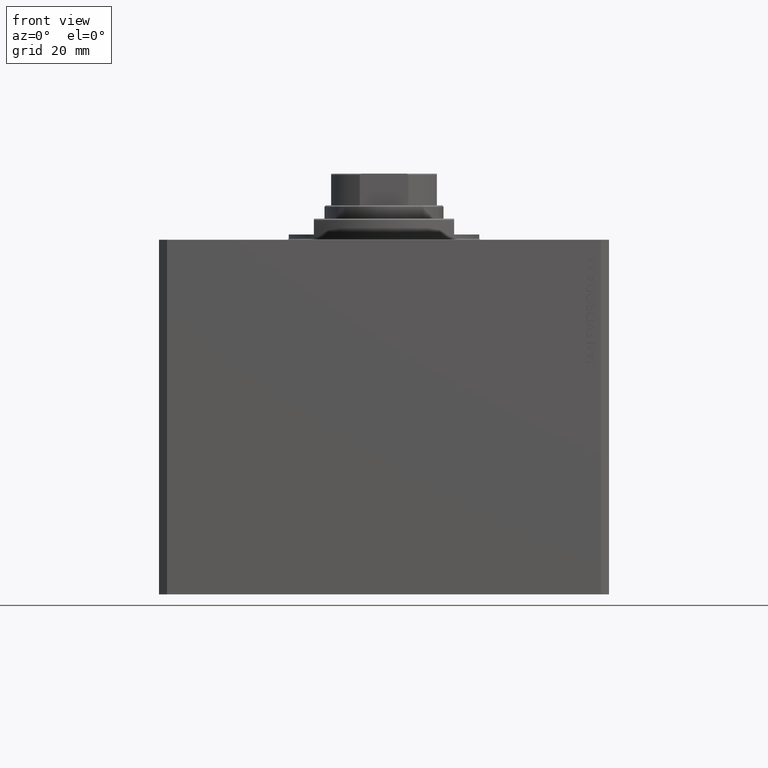
[diagram: clean part render]
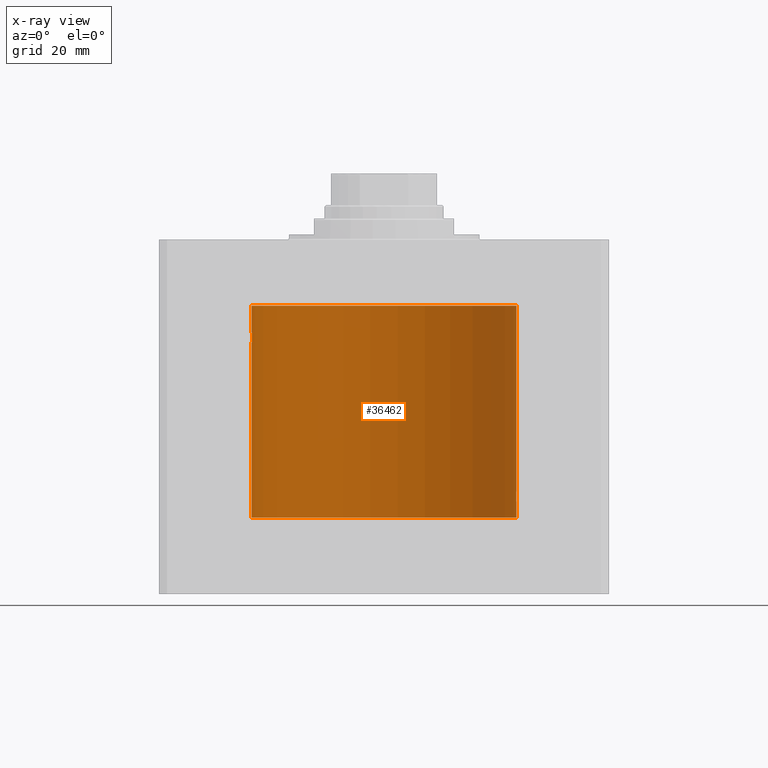
[diagram: x-ray — body ghosted, one internal face saturated and labeled with its STEP entity id]
A machine part, front view, then the same camera in x-ray: the body is ghosted and one INTERNAL B-rep face — a face not visible from any outside direction — is saturated and labeled: STEP entity #36462.
In plain terms, the highlighted cylindrical surface (partial cylindrical patch) has radius 50 mm, axis along (0, 0, 1).
Its self-contained STEP definition (entity closure, byte-faithful):
#95 = CARTESIAN_POINT ( 'NONE',  ( 50.00000000000000000, 0.000000000000000000, -105.0999999999999943 ) ) ;
#445 = CARTESIAN_POINT ( 'NONE',  ( 49.96051123778291725, 1.986950357331387140, -96.73708610268799646 ) ) ;
#1795 = CARTESIAN_POINT ( 'NONE',  ( -49.99599814809604226, 0.6440968921210813436, -38.89798495722402549 ) ) ;
#1901 = LINE ( 'NONE', #2839, #44087 ) ;
#2258 = CARTESIAN_POINT ( 'NONE',  ( -49.97474787754178749, 1.590541763713786860, -38.21949285922860184 ) ) ;
#2276 = VERTEX_POINT ( 'NONE', #43011 ) ;
#2676 = ORIENTED_EDGE ( 'NONE', *, *, #15402, .T. ) ;
#2839 = CARTESIAN_POINT ( 'NONE',  ( -50.00000000000000000, 6.123233995736766085E-15, -105.0999999999999943 ) ) ;
#3332 = CARTESIAN_POINT ( 'NONE',  ( 50.00000000000000000, -6.476745247090812175E-24, -95.00000000000001421 ) ) ;
#3558 = CARTESIAN_POINT ( 'NONE',  ( 49.95998398718716516, 2.000000000000564881, -96.86956549692720841 ) ) ;
#4118 = VECTOR ( 'NONE', #12092, 1000.000000000000000 ) ;
#4270 = CARTESIAN_POINT ( 'NONE',  ( 49.98263500888552358, 1.320952538904951457, -95.49251590435537196 ) ) ;
#5487 = CARTESIAN_POINT ( 'NONE',  ( -50.00000000000000000, 6.123233995736766085E-15, -105.0999999999999943 ) ) ;
#5605 = CARTESIAN_POINT ( 'NONE',  ( -49.99004874905787688, 1.003375892571688910, -38.73499659467171341 ) ) ;
#5617 = CARTESIAN_POINT ( 'NONE',  ( 50.00000000000000000, 0.000000000000000000, -105.0999999999999943 ) ) ;
#6069 = CARTESIAN_POINT ( 'NONE',  ( -49.95998213453558634, 2.000046279225707213, -37.12975027192857880 ) ) ;
#6193 = CARTESIAN_POINT ( 'NONE',  ( 50.00000000000000000, -6.476745247090812175E-24, -95.00000000000001421 ) ) ;
#6199 = ORIENTED_EDGE ( 'NONE', *, *, #19972, .T. ) ;
#6225 = VERTEX_POINT ( 'NONE', #17103 ) ;
#6426 = LINE ( 'NONE', #5487, #24194 ) ;
#6551 = EDGE_CURVE ( 'NONE', #2276, #15673, #6426, .T. ) ;
#7735 = EDGE_CURVE ( 'NONE', #31472, #6225, #19476, .T. ) ;
#8024 = CARTESIAN_POINT ( 'NONE',  ( 49.95998398718716516, 2.000000000000563549, -97.00000000000001421 ) ) ;
#9174 = CARTESIAN_POINT ( 'NONE',  ( -50.00000000000001421, 0.1305374531515847703, -38.99999999999999289 ) ) ;
#9233 = CARTESIAN_POINT ( 'NONE',  ( 49.99598718814007015, 0.6449352407546056209, -98.89769711772645167 ) ) ;
#9638 = CARTESIAN_POINT ( 'NONE',  ( -49.96953708402610062, 1.747948211813102892, -35.99374183287712725 ) ) ;
#9854 = AXIS2_PLACEMENT_3D ( 'NONE', #14190, #28007, #24679 ) ;
#10011 = VECTOR ( 'NONE', #32549, 1000.000000000000000 ) ;
#10898 = CARTESIAN_POINT ( 'NONE',  ( 50.00000000000000000, 4.564789087886820642E-17, -99.00000000000001421 ) ) ;
#11189 = CARTESIAN_POINT ( 'NONE',  ( 49.99229103891970993, 0.8862970221311291530, -95.20231340018577271 ) ) ;
#11203 = CARTESIAN_POINT ( 'NONE',  ( 0.000000000000000000, 0.000000000000000000, -24.99999999999999289 ) ) ;
#11394 = ORIENTED_EDGE ( 'NONE', *, *, #6551, .F. ) ;
#12092 = DIRECTION ( 'NONE',  ( -0.000000000000000000, -0.000000000000000000, 1.000000000000000000 ) ) ;
#12123 = ORIENTED_EDGE ( 'NONE', *, *, #46213, .F. ) ;
#12126 = CARTESIAN_POINT ( 'NONE',  ( 49.95998398718716516, 2.000000000000563549, -97.00000000000001421 ) ) ;
#12360 = CARTESIAN_POINT ( 'NONE',  ( 49.99748146545036320, 0.5178754880116728243, -98.93618132556301248 ) ) ;
#12448 = B_SPLINE_CURVE_WITH_KNOTS ( 'NONE', 3,
 ( #32893, #3558, #445, #32426, #22150, #18119, #29307, #47243, #36972, #4270, #36738, #29542, #11189, #40322, #25018, #32656, #25718, #3332 ),
 .UNSPECIFIED., .F., .F.,
 ( 4, 2, 2, 2, 2, 2, 2, 2, 4 ),
 ( 0.003127478965430518024, 0.003518236230679781373, 0.003908993495929044722, 0.004299750761178307637, 0.004690508026427571420, 0.005081265291676834335, 0.005472022556926097250, 0.005862779822175361033, 0.006253537087424623948 ),
 .UNSPECIFIED. ) ;
#12762 = CARTESIAN_POINT ( 'NONE',  ( -49.98259925701036366, 1.322227939264704055, -35.49376754264949341 ) ) ;
#12820 = CARTESIAN_POINT ( 'NONE',  ( 49.99227494580978259, 0.8871990329080465809, -98.79724057694063788 ) ) ;
#12867 = DIRECTION ( 'NONE',  ( -0.000000000000000000, -0.000000000000000000, 1.000000000000000000 ) ) ;
#13062 = CARTESIAN_POINT ( 'NONE',  ( 49.96952841668770162, 1.748193601366643479, -98.00584708661953925 ) ) ;
#14190 = CARTESIAN_POINT ( 'NONE',  ( 0.000000000000000000, 0.000000000000000000, -105.0999999999999943 ) ) ;
#14829 = ORIENTED_EDGE ( 'NONE', *, *, #39789, .F. ) ;
#15402 = EDGE_CURVE ( 'NONE', #46019, #31472, #12448, .T. ) ;
#15671 = VERTEX_POINT ( 'NONE', #10898 ) ;
#15673 = VERTEX_POINT ( 'NONE', #29014 ) ;
#15709 = CARTESIAN_POINT ( 'NONE',  ( 49.98524326844813004, 1.219541607305973274, -98.59053820226216658 ) ) ;
#16018 = EDGE_CURVE ( 'NONE', #46082, #15671, #25146, .T. ) ;
#16539 = EDGE_CURVE ( 'NONE', #6225, #39444, #39008, .T. ) ;
#16570 = CARTESIAN_POINT ( 'NONE',  ( -49.99748258676788026, 0.5177602892975206039, -35.06378986968200451 ) ) ;
#16811 = CARTESIAN_POINT ( 'NONE',  ( -49.99746633848589283, 0.5194059499681270564, -38.93579253716512767 ) ) ;
#17103 = CARTESIAN_POINT ( 'NONE',  ( 50.00000000000000000, 0.000000000000000000, -24.99999999999999289 ) ) ;
#17305 = B_SPLINE_CURVE_WITH_KNOTS ( 'NONE', 3,
 ( #30933, #45532, #34769, #12360, #9233, #12820, #41489, #15709, #41955, #45767, #13062, #30243, #44836, #12126 ),
 .UNSPECIFIED., .F., .F.,
 ( 4, 2, 2, 2, 2, 2, 4 ),
 ( 4.436058941706983627E-20, 0.0003909348706788146445, 0.0007818697413576291807, 0.001172804612036443825, 0.001563739482715258361, 0.002345609224072888084, 0.003127478965430518024 ),
 .UNSPECIFIED. ) ;
#18119 = CARTESIAN_POINT ( 'NONE',  ( 49.96769480970100119, 1.797773714148178881, -96.11390000902663644 ) ) ;
#18312 = ORIENTED_EDGE ( 'NONE', *, *, #16018, .T. ) ;
#19476 = LINE ( 'NONE', #34275, #4118 ) ;
#19905 = CARTESIAN_POINT ( 'NONE',  ( -49.99947195246410558, 0.2631107820817846776, -38.98691922436691470 ) ) ;
#19972 = EDGE_CURVE ( 'NONE', #15671, #46019, #17305, .T. ) ;
#20139 = CARTESIAN_POINT ( 'NONE',  ( -49.96992887184637055, 1.735355026673580214, -38.00276062309308855 ) ) ;
#20369 = CARTESIAN_POINT ( 'NONE',  ( -50.00000000000000711, 0.1321588334531834663, -34.99999999999998579 ) ) ;
#21719 = DIRECTION ( 'NONE',  ( 1.000000000000000000, 0.000000000000000000, 0.000000000000000000 ) ) ;
#22150 = CARTESIAN_POINT ( 'NONE',  ( 49.96398801900035380, 1.898003203340656198, -96.35599117910246036 ) ) ;
#23725 = CARTESIAN_POINT ( 'NONE',  ( -50.00000000000000000, 6.123233995736766085E-15, -24.99999999999999289 ) ) ;
#23942 = CARTESIAN_POINT ( 'NONE',  ( -50.00000000000000000, 6.123233989258355553E-15, -38.99999999999999289 ) ) ;
#24176 = CARTESIAN_POINT ( 'NONE',  ( -49.96216141728076821, 1.947404903100933504, -36.47512611661414184 ) ) ;
#24194 = VECTOR ( 'NONE', #39129, 1000.000000000000000 ) ;
#24679 = DIRECTION ( 'NONE',  ( 1.000000000000000000, 0.000000000000000000, 0.000000000000000000 ) ) ;
#24909 = B_SPLINE_CURVE_WITH_KNOTS ( 'NONE', 3,
 ( #35750, #20369, #27063, #16570, #45939, #27758, #34478, #42356, #12762, #34011, #9638, #24176, #34944, #6069, #45471, #38525, #27292, #38764, #20139, #2258, #30418, #45019, #38301, #5605, #34706, #1795, #16811, #19905, #9174, #23942 ),
 .UNSPECIFIED., .F., .F.,
 ( 4, 2, 2, 2, 2, 2, 2, 2, 2, 2, 2, 2, 2, 2, 4 ),
 ( 1.951448278188101682E-19, 0.0003908460679639682526, 0.0007816921359279362883, 0.001172538203891904324, 0.001563384271855872360, 0.002345076407783809082, 0.003126768543711746021, 0.003517614611675714056, 0.003908460679639682092, 0.004299306747603650128, 0.004690152815567618164, 0.005080998883531586199, 0.005471844951495554235, 0.005862691019459522271, 0.006253537087423490307 ),
 .UNSPECIFIED. ) ;
#25018 = CARTESIAN_POINT ( 'NONE',  ( 49.99746746122490038, 0.5192910711913449884, -95.06417861566059457 ) ) ;
#25054 = CARTESIAN_POINT ( 'NONE',  ( 0.000000000000000000, 0.000000000000000000, -105.0999999999999943 ) ) ;
#25146 = LINE ( 'NONE', #95, #10011 ) ;
#25290 = DIRECTION ( 'NONE',  ( -0.000000000000000000, -0.000000000000000000, 1.000000000000000000 ) ) ;
#25502 = DIRECTION ( 'NONE',  ( 0.000000000000000000, 0.000000000000000000, 1.000000000000000000 ) ) ;
#25718 = CARTESIAN_POINT ( 'NONE',  ( 50.00000000000000000, 0.1305077942112368161, -94.99999999999997158 ) ) ;
#27063 = CARTESIAN_POINT ( 'NONE',  ( -49.99947640732126786, 0.2621063239499291098, -35.01297064418641014 ) ) ;
#27292 = CARTESIAN_POINT ( 'NONE',  ( -49.96398106625520086, 1.898185627324846303, -37.64347622409935212 ) ) ;
#27411 = VERTEX_POINT ( 'NONE', #33109 ) ;
#27758 = CARTESIAN_POINT ( 'NONE',  ( -49.99227820941651146, 0.8870121366447422107, -35.20266925059756602 ) ) ;
#28007 = DIRECTION ( 'NONE',  ( 0.000000000000000000, 0.000000000000000000, 1.000000000000000000 ) ) ;
#28396 = CYLINDRICAL_SURFACE ( 'NONE', #39380, 50.00000000000000000 ) ;
#29014 = CARTESIAN_POINT ( 'NONE',  ( -50.00000000000000000, 6.123233989258355553E-15, -38.99999999999999289 ) ) ;
#29307 = CARTESIAN_POINT ( 'NONE',  ( 49.96993720661966876, 1.735115303979041013, -95.99682860132226381 ) ) ;
#29542 = CARTESIAN_POINT ( 'NONE',  ( 49.99005286890574951, 1.003169031662882960, -95.26488598342368164 ) ) ;
#29824 = AXIS2_PLACEMENT_3D ( 'NONE', #11203, #25502, #40575 ) ;
#30243 = CARTESIAN_POINT ( 'NONE',  ( 49.96215500645249818, 1.947567242801464760, -97.52430054767012280 ) ) ;
#30418 = CARTESIAN_POINT ( 'NONE',  ( -49.97734518528593384, 1.507874855161120076, -38.32050907330479106 ) ) ;
#30933 = CARTESIAN_POINT ( 'NONE',  ( 50.00000000000000000, 4.564789087886820642E-17, -99.00000000000001421 ) ) ;
#31472 = VERTEX_POINT ( 'NONE', #6193 ) ;
#32098 = EDGE_LOOP ( 'NONE', ( #11394, #12123, #18312, #6199, #2676, #35924, #32691, #14829, #33713 ) ) ;
#32426 = CARTESIAN_POINT ( 'NONE',  ( 49.96251892914505532, 1.935809163618958051, -96.48063661859163176 ) ) ;
#32549 = DIRECTION ( 'NONE',  ( -0.000000000000000000, -0.000000000000000000, 1.000000000000000000 ) ) ;
#32656 = CARTESIAN_POINT ( 'NONE',  ( 49.99947219664575471, 0.2630509640965526530, -95.01307477770994581 ) ) ;
#32691 = ORIENTED_EDGE ( 'NONE', *, *, #16539, .T. ) ;
#32893 = CARTESIAN_POINT ( 'NONE',  ( 49.95998398718716516, 2.000000000000563549, -97.00000000000001421 ) ) ;
#33109 = CARTESIAN_POINT ( 'NONE',  ( -50.00000000000000000, -9.003882097956092458E-15, -34.99999999999999289 ) ) ;
#33713 = ORIENTED_EDGE ( 'NONE', *, *, #44939, .T. ) ;
#34011 = CARTESIAN_POINT ( 'NONE',  ( -49.97476780406313424, 1.598950834465297177, -35.77059039179120958 ) ) ;
#34275 = CARTESIAN_POINT ( 'NONE',  ( 50.00000000000000000, 0.000000000000000000, -105.0999999999999943 ) ) ;
#34478 = CARTESIAN_POINT ( 'NONE',  ( -49.99007938266582585, 1.001891274688315958, -35.26411427938287346 ) ) ;
#34706 = CARTESIAN_POINT ( 'NONE',  ( -49.99228773711749341, 0.8864865707480856782, -38.79759541170199100 ) ) ;
#34769 = CARTESIAN_POINT ( 'NONE',  ( 49.99947616946592177, 0.2621653831979099958, -98.98702351732300997 ) ) ;
#34944 = CARTESIAN_POINT ( 'NONE',  ( -49.95998770768563446, 1.999907061972440614, -36.73836523183381786 ) ) ;
#34998 = CIRCLE ( 'NONE', #9854, 50.00000000000000000 ) ;
#35750 = CARTESIAN_POINT ( 'NONE',  ( -50.00000000000000000, -9.003882097956092458E-15, -34.99999999999999289 ) ) ;
#35924 = ORIENTED_EDGE ( 'NONE', *, *, #7735, .T. ) ;
#36462 = ADVANCED_FACE ( 'NONE', ( #43464 ), #28396, .F. ) ;
#36738 = CARTESIAN_POINT ( 'NONE',  ( 49.98523696312182096, 1.219762141829697999, -95.40967013674320185 ) ) ;
#36972 = CARTESIAN_POINT ( 'NONE',  ( 49.97735290927441554, 1.507618726120014019, -95.67920111852207299 ) ) ;
#38301 = CARTESIAN_POINT ( 'NONE',  ( -49.98523123236354593, 1.219998263164736807, -38.59015112589698759 ) ) ;
#38525 = CARTESIAN_POINT ( 'NONE',  ( -49.96251288907240706, 1.935964606501246799, -37.51879205273049678 ) ) ;
#38764 = CARTESIAN_POINT ( 'NONE',  ( -49.96768660357033554, 1.798001154690308967, -37.88564223843271606 ) ) ;
#39008 = CIRCLE ( 'NONE', #29824, 50.00000000000000000 ) ;
#39129 = DIRECTION ( 'NONE',  ( -0.000000000000000000, -0.000000000000000000, 1.000000000000000000 ) ) ;
#39380 = AXIS2_PLACEMENT_3D ( 'NONE', #25054, #25290, #21719 ) ;
#39444 = VERTEX_POINT ( 'NONE', #23725 ) ;
#39789 = EDGE_CURVE ( 'NONE', #27411, #39444, #1901, .T. ) ;
#40322 = CARTESIAN_POINT ( 'NONE',  ( 49.99599990398858296, 0.6439560014968555013, -95.10196939152022821 ) ) ;
#40575 = DIRECTION ( 'NONE',  ( 1.000000000000000000, 0.000000000000000000, 0.000000000000000000 ) ) ;
#41489 = CARTESIAN_POINT ( 'NONE',  ( 49.99007528730422933, 1.002097354324908984, -98.73576910828036546 ) ) ;
#41955 = CARTESIAN_POINT ( 'NONE',  ( 49.98259270595343651, 1.322475809934057889, -98.50601728397791135 ) ) ;
#42356 = CARTESIAN_POINT ( 'NONE',  ( -49.98524905102831184, 1.219303128102697586, -35.40928153240807319 ) ) ;
#43011 = CARTESIAN_POINT ( 'NONE',  ( -50.00000000000000000, 6.123233995736766085E-15, -105.0999999999999943 ) ) ;
#43464 = FACE_OUTER_BOUND ( 'NONE', #32098, .T. ) ;
#44087 = VECTOR ( 'NONE', #12867, 1000.000000000000000 ) ;
#44836 = CARTESIAN_POINT ( 'NONE',  ( 49.95998398718717226, 2.000000000000561773, -97.26098757528311012 ) ) ;
#44939 = EDGE_CURVE ( 'NONE', #27411, #15673, #24909, .T. ) ;
#45019 = CARTESIAN_POINT ( 'NONE',  ( -49.98262832829516356, 1.321205413082626068, -38.50726475708437135 ) ) ;
#45471 = CARTESIAN_POINT ( 'NONE',  ( -49.96050770337905789, 1.987038794023258559, -37.26226128698008466 ) ) ;
#45532 = CARTESIAN_POINT ( 'NONE',  ( 50.00000000000000711, 0.1321888607815029093, -99.00000000000005684 ) ) ;
#45767 = CARTESIAN_POINT ( 'NONE',  ( 49.97475955401471026, 1.599209500590070165, -98.22908514075388098 ) ) ;
#45939 = CARTESIAN_POINT ( 'NONE',  ( -49.99598898362840771, 0.6447919409892277631, -35.10225615370830354 ) ) ;
#46019 = VERTEX_POINT ( 'NONE', #8024 ) ;
#46082 = VERTEX_POINT ( 'NONE', #5617 ) ;
#46213 = EDGE_CURVE ( 'NONE', #46082, #2276, #34998, .T. ) ;
#47243 = CARTESIAN_POINT ( 'NONE',  ( 49.97475596784978080, 1.590287868744626465, -95.78017932967554771 ) ) ;